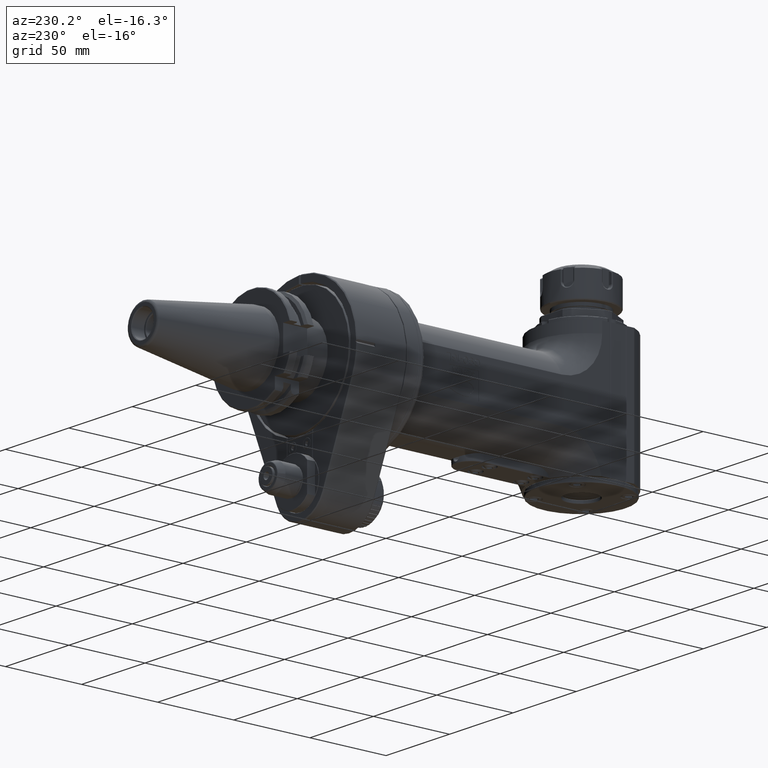
[diagram: clean part render]
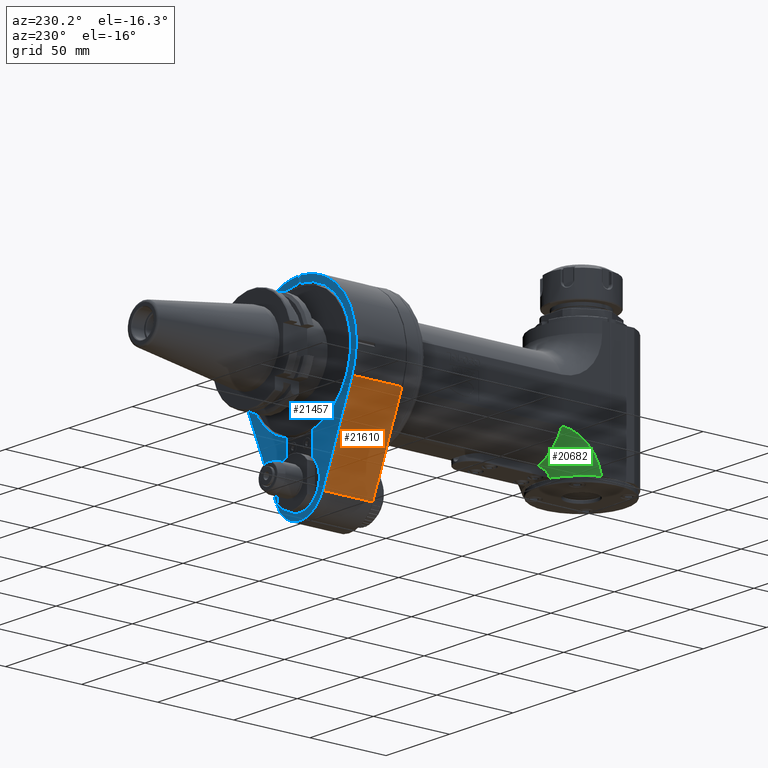
[diagram: same view with three faces highlighted in distinct colors, each labeled with its STEP entity id]
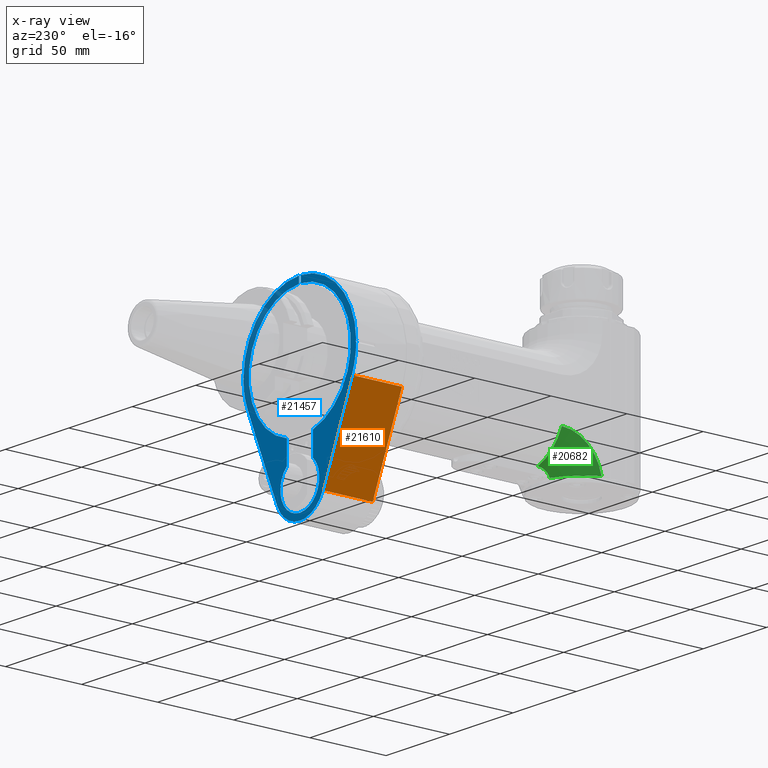
[diagram: x-ray of the same camera — body ghosted, the three highlighted faces saturated]
A machine part, auxiliary view with three faces highlighted in distinct colors.
The next image is the same camera in x-ray (body ghosted, the three faces saturated) — at least one of them is partly hidden behind the body in this view.
Their STEP definitions:

[orange] entity #21610 — the highlighted planar face has unit normal (-0.9231, 0, -0.3846).
#982=PLANE('',#23473);
#2399=FACE_OUTER_BOUND('',#3698,.T.);
#3698=EDGE_LOOP('',(#19304,#19305,#19306,#19307));
#6514=LINE('',#40719,#8576);
#6524=LINE('',#40741,#8586);
#6525=LINE('',#40743,#8587);
#6526=LINE('',#40744,#8588);
#8576=VECTOR('',#28660,10.);
#8586=VECTOR('',#28686,10.);
#8587=VECTOR('',#28689,31.99969563317);
#8588=VECTOR('',#28690,32.00018741808);
#10555=VERTEX_POINT('',#39226);
#10771=VERTEX_POINT('',#40714);
#10772=VERTEX_POINT('',#40718);
#10776=VERTEX_POINT('',#40737);
#13695=EDGE_CURVE('',#10772,#10771,#6514,.T.);
#13707=EDGE_CURVE('',#10555,#10776,#6524,.T.);
#13708=EDGE_CURVE('',#10776,#10772,#6525,.T.);
#13709=EDGE_CURVE('',#10771,#10555,#6526,.T.);
#19304=ORIENTED_EDGE('',*,*,#13707,.T.);
#19305=ORIENTED_EDGE('',*,*,#13708,.T.);
#19306=ORIENTED_EDGE('',*,*,#13695,.T.);
#19307=ORIENTED_EDGE('',*,*,#13709,.T.);
#21610=ADVANCED_FACE('',(#2399),#982,.T.);
#23473=AXIS2_PLACEMENT_3D('',#40742,#28687,#28688);
#28660=DIRECTION('',(-0.384615384615406,3.39139971075705E-14,0.923076923076914));
#28686=DIRECTION('',(0.384615384615406,3.39139971075705E-14,-0.923076923076914));
#28687=DIRECTION('center_axis',(-0.923076923076914,0.,-0.384615384615406));
#28688=DIRECTION('ref_axis',(-0.384615384615406,0.,0.923076923076914));
#28689=DIRECTION('',(-5.231420650501E-13,-1.,-2.184939694437E-13));
#28690=DIRECTION('',(5.357904936583E-13,1.,1.99061822447E-13));
#39226=CARTESIAN_POINT('',(-41.5383202524667,32.5003101427439,-17.3076334733757));
#40714=CARTESIAN_POINT('',(-41.5384616394059,0.500113797660992,-17.3076923845356));
#40718=CARTESIAN_POINT('',(-18.4615386000156,0.500150759076893,-72.6923076780329));
#40719=CARTESIAN_POINT('',(-24.2307692307706,0.500000000001736,-58.8461538461574));
#40737=CARTESIAN_POINT('',(-18.4615384204592,32.499849710546,-72.692307603216));
#40741=CARTESIAN_POINT('',(-24.2307692307709,32.4999999999983,-58.8461538461569));
#40742=CARTESIAN_POINT('Origin',(-18.46153846154,0.,-72.69230769231));
#40743=CARTESIAN_POINT('',(-18.46153848688,32.49985434569,-72.69230763089));
#40744=CARTESIAN_POINT('',(-41.53846152592,0.5001217498938,-17.30769233725));

[blue] entity #21457 — the highlighted planar face has unit normal (0, 1, 0).
#909=PLANE('',#23178);
#2246=FACE_OUTER_BOUND('',#3528,.T.);
#3528=EDGE_LOOP('',(#18530,#18531,#18532,#18533,#18534,#18535,#18536,#18537,
#18538,#18539,#18540,#18541,#18542,#18543,#18544,#18545,#18546,#18547));
#4540=CIRCLE('',#23176,44.49997422302);
#4542=CIRCLE('',#23179,44.50060196107);
#4543=CIRCLE('',#23180,44.49995139312);
#4544=CIRCLE('',#23181,40.19996696382);
#4545=CIRCLE('',#23182,15.34995496794);
#4546=CIRCLE('',#23183,40.19996600925);
#4547=CIRCLE('',#23184,44.5006095081);
#4548=CIRCLE('',#23185,19.49970659949);
#6329=LINE('',#39156,#8391);
#6335=LINE('',#39194,#8397);
#6336=LINE('',#39196,#8398);
#6337=LINE('',#39200,#8399);
#6338=LINE('',#39204,#8400);
#6339=LINE('',#39208,#8401);
#6340=LINE('',#39211,#8402);
#6341=LINE('',#39213,#8403);
#6342=LINE('',#39217,#8404);
#6343=LINE('',#39220,#8405);
#8391=VECTOR('',#27891,10.);
#8397=VECTOR('',#27911,10.);
#8398=VECTOR('',#27912,10.);
#8399=VECTOR('',#27915,10.);
#8400=VECTOR('',#27918,10.);
#8401=VECTOR('',#27921,10.);
#8402=VECTOR('',#27924,10.);
#8403=VECTOR('',#27925,10.);
#8404=VECTOR('',#27928,10.);
#8405=VECTOR('',#27931,10.);
#10526=VERTEX_POINT('',#39150);
#10528=VERTEX_POINT('',#39155);
#10537=VERTEX_POINT('',#39182);
#10539=VERTEX_POINT('',#39190);
#10540=VERTEX_POINT('',#39191);
#10541=VERTEX_POINT('',#39193);
#10542=VERTEX_POINT('',#39195);
#10543=VERTEX_POINT('',#39197);
#10544=VERTEX_POINT('',#39199);
#10545=VERTEX_POINT('',#39201);
#10546=VERTEX_POINT('',#39203);
#10547=VERTEX_POINT('',#39205);
#10548=VERTEX_POINT('',#39207);
#10549=VERTEX_POINT('',#39210);
#10550=VERTEX_POINT('',#39212);
#10551=VERTEX_POINT('',#39214);
#10552=VERTEX_POINT('',#39216);
#10553=VERTEX_POINT('',#39218);
#13305=EDGE_CURVE('',#10528,#10526,#6329,.T.);
#13316=EDGE_CURVE('',#10537,#10526,#4540,.T.);
#13319=EDGE_CURVE('',#10539,#10540,#4542,.T.);
#13320=EDGE_CURVE('',#10541,#10539,#6335,.T.);
#13321=EDGE_CURVE('',#10542,#10541,#6336,.T.);
#13322=EDGE_CURVE('',#10543,#10542,#4543,.T.);
#13323=EDGE_CURVE('',#10544,#10543,#6337,.T.);
#13324=EDGE_CURVE('',#10545,#10544,#4544,.T.);
#13325=EDGE_CURVE('',#10546,#10545,#6338,.T.);
#13326=EDGE_CURVE('',#10547,#10546,#4545,.T.);
#13327=EDGE_CURVE('',#10548,#10547,#6339,.T.);
#13328=EDGE_CURVE('',#10528,#10548,#4546,.T.);
#13329=EDGE_CURVE('',#10549,#10537,#6340,.T.);
#13330=EDGE_CURVE('',#10550,#10549,#6341,.T.);
#13331=EDGE_CURVE('',#10551,#10550,#4547,.T.);
#13332=EDGE_CURVE('',#10552,#10551,#6342,.T.);
#13333=EDGE_CURVE('',#10553,#10552,#4548,.T.);
#13334=EDGE_CURVE('',#10540,#10553,#6343,.T.);
#18530=ORIENTED_EDGE('',*,*,#13319,.F.);
#18531=ORIENTED_EDGE('',*,*,#13320,.F.);
#18532=ORIENTED_EDGE('',*,*,#13321,.F.);
#18533=ORIENTED_EDGE('',*,*,#13322,.F.);
#18534=ORIENTED_EDGE('',*,*,#13323,.F.);
#18535=ORIENTED_EDGE('',*,*,#13324,.F.);
#18536=ORIENTED_EDGE('',*,*,#13325,.F.);
#18537=ORIENTED_EDGE('',*,*,#13326,.F.);
#18538=ORIENTED_EDGE('',*,*,#13327,.F.);
#18539=ORIENTED_EDGE('',*,*,#13328,.F.);
#18540=ORIENTED_EDGE('',*,*,#13305,.T.);
#18541=ORIENTED_EDGE('',*,*,#13316,.F.);
#18542=ORIENTED_EDGE('',*,*,#13329,.F.);
#18543=ORIENTED_EDGE('',*,*,#13330,.F.);
#18544=ORIENTED_EDGE('',*,*,#13331,.F.);
#18545=ORIENTED_EDGE('',*,*,#13332,.F.);
#18546=ORIENTED_EDGE('',*,*,#13333,.F.);
#18547=ORIENTED_EDGE('',*,*,#13334,.F.);
#21457=ADVANCED_FACE('',(#2246),#909,.T.);
#23176=AXIS2_PLACEMENT_3D('',#39183,#27903,#27904);
#23178=AXIS2_PLACEMENT_3D('',#39189,#27907,#27908);
#23179=AXIS2_PLACEMENT_3D('',#39192,#27909,#27910);
#23180=AXIS2_PLACEMENT_3D('',#39198,#27913,#27914);
#23181=AXIS2_PLACEMENT_3D('',#39202,#27916,#27917);
#23182=AXIS2_PLACEMENT_3D('',#39206,#27919,#27920);
#23183=AXIS2_PLACEMENT_3D('',#39209,#27922,#27923);
#23184=AXIS2_PLACEMENT_3D('',#39215,#27926,#27927);
#23185=AXIS2_PLACEMENT_3D('',#39219,#27929,#27930);
#27891=DIRECTION('',(0.,0.,1.));
#27903=DIRECTION('center_axis',(0.,-1.,0.));
#27904=DIRECTION('ref_axis',(0.999937579972993,0.,0.0111730102368899));
#27907=DIRECTION('center_axis',(0.,1.,0.));
#27908=DIRECTION('ref_axis',(1.,0.,0.));
#27909=DIRECTION('center_axis',(0.,-1.,0.));
#27910=DIRECTION('ref_axis',(-0.999937458228398,0.,-0.01118390055975));
#27911=DIRECTION('',(-0.707106781186597,0.,-0.707106781186498));
#27912=DIRECTION('',(0.707106781186548,0.,-0.707106781186548));
#27913=DIRECTION('center_axis',(0.,-1.,0.));
#27914=DIRECTION('ref_axis',(-0.0168539476534495,0.,0.99985796213687));
#27915=DIRECTION('',(0.,0.,1.));
#27916=DIRECTION('center_axis',(0.,1.,0.));
#27917=DIRECTION('ref_axis',(-0.253731472853505,0.,-0.967274697117417));
#27918=DIRECTION('',(0.,0.,1.));
#27919=DIRECTION('center_axis',(0.,1.,0.));
#27920=DIRECTION('ref_axis',(-0.664496173825118,0.,-0.74729166660132));
#27921=DIRECTION('',(0.,0.,-1.));
#27922=DIRECTION('center_axis',(0.,1.,0.));
#27923=DIRECTION('ref_axis',(0.0186567299968895,0.,0.999825948065874));
#27924=DIRECTION('',(0.707106781186548,0.,0.707106781186548));
#27925=DIRECTION('',(-0.707106781186597,0.,0.707106781186498));
#27926=DIRECTION('center_axis',(0.,-1.,0.));
#27927=DIRECTION('ref_axis',(0.9230769226415,0.,-0.3846153856604));
#27928=DIRECTION('',(0.384615384615375,0.,0.923076923076927));
#27929=DIRECTION('center_axis',(0.,-1.,0.));
#27930=DIRECTION('ref_axis',(0.,0.,-1.));
#27931=DIRECTION('',(0.384615384615375,0.,-0.923076923076927));
#39150=CARTESIAN_POINT('',(0.749999999978455,32.9999999996272,44.4936535466589));
#39155=CARTESIAN_POINT('',(0.750000000029131,32.9999999995471,40.1929691246732));
#39156=CARTESIAN_POINT('',(0.75,33.,11.65449913669));
#39182=CARTESIAN_POINT('',(44.497196560421,32.9999999984871,0.497196562890159));
#39183=CARTESIAN_POINT('Origin',(-3.67261766546E-13,33.,6.679101816145E-13));
#39189=CARTESIAN_POINT('Origin',(0.,33.,0.));
#39190=CARTESIAN_POINT('',(-44.4978171876307,33.0000000911052,-0.497817038986331));
#39191=CARTESIAN_POINT('',(-41.0772125627142,32.9998540376262,-17.1155052666226));
#39192=CARTESIAN_POINT('Origin',(-4.760636229593E-13,33.,0.));
#39193=CARTESIAN_POINT('',(-43.9999999999993,33.0000000005136,3.22546367951519E-13));
#39194=CARTESIAN_POINT('',(-32.9999999999985,33.,11.));
#39195=CARTESIAN_POINT('',(-44.4971739948912,32.999999992489,0.497174007139183));
#39196=CARTESIAN_POINT('',(-33.5,33.,-10.5));
#39197=CARTESIAN_POINT('',(-0.749999999975591,32.9999999995714,44.4936307136342));
#39198=CARTESIAN_POINT('Origin',(1.076472254677E-12,32.99999999999,-1.803002091991E-13));
#39199=CARTESIAN_POINT('',(-0.7499999994176,33.0000000002497,40.192970081119));
#39200=CARTESIAN_POINT('',(-0.75,33.,23.50149913669));
#39201=CARTESIAN_POINT('',(-10.2000000001101,33.0000000001551,-38.8844100370403));
#39202=CARTESIAN_POINT('Origin',(6.563638621584E-13,33.,-1.428190888878E-12));
#39203=CARTESIAN_POINT('',(-10.1999999996973,32.9999999999989,-53.5291187115762));
#39204=CARTESIAN_POINT('',(-10.2,33.,-23.087259558755));
#39205=CARTESIAN_POINT('',(10.1999999995047,33.0000000000003,-53.5291187111416));
#39206=CARTESIAN_POINT('Origin',(2.531308596145E-13,33.,-65.));
#39207=CARTESIAN_POINT('',(10.1999999993647,32.9999999996909,-38.8844090493058));
#39208=CARTESIAN_POINT('',(10.2,33.,-23.087259558755));
#39209=CARTESIAN_POINT('Origin',(3.046452079571E-13,33.,2.48689967516E-13));
#39210=CARTESIAN_POINT('',(43.9999999999993,33.0000000005209,3.5344623017531E-13));
#39211=CARTESIAN_POINT('',(33.5,33.,-10.5));
#39212=CARTESIAN_POINT('',(44.497824649052,33.0000000922471,-0.497824498542216));
#39213=CARTESIAN_POINT('',(32.9999999999985,33.,11.));
#39214=CARTESIAN_POINT('',(41.0772051091035,32.999999505033,-17.1155021788918));
#39215=CARTESIAN_POINT('Origin',(9.166001391305E-13,33.,1.321165499304E-13));
#39216=CARTESIAN_POINT('',(18.0002498721373,33.0000111993003,-72.4990188531515));
#39217=CARTESIAN_POINT('',(35.3076923076922,33.,-30.9615384615402));
#39218=CARTESIAN_POINT('',(-18.000237297124,32.999999043758,-72.4990530568679));
#39219=CARTESIAN_POINT('Origin',(-6.217247937901E-14,33.,-65.));
#39220=CARTESIAN_POINT('',(-35.3076923076922,33.,-30.9615384615402));

[green] entity #20682 — the highlighted toroidal blend (fillet) surface has major radius 40 mm and minor (blend) radius 32 mm.
#382=TOROIDAL_SURFACE('',#21936,40.,32.);
#1241=B_SPLINE_CURVE_WITH_KNOTS('',3,(#30259,#30260,#30261,#30262,#30263,
#30264,#30265,#30266,#30267,#30268,#30269,#30270,#30271,#30272,#30273,#30274,
#30275,#30276,#30277,#30278,#30279,#30280,#30281,#30282,#30283,#30284,#30285,
#30286,#30287,#30288,#30289,#30290,#30291,#30292),.UNSPECIFIED.,.F.,.F.,
(4,3,3,3,3,3,3,3,3,3,3,4),(0.,0.09090909090909,0.1818181818182,0.2727272727273,
0.3636363636364,0.4545454545455,0.5454545454545,0.6363636363636,0.7272727272727,
0.8181818181818,0.9090909090909,1.),.UNSPECIFIED.);
#1242=B_SPLINE_CURVE_WITH_KNOTS('',3,(#30296,#30297,#30298,#30299,#30300,
#30301,#30302,#30303,#30304,#30305,#30306,#30307,#30308,#30309,#30310,#30311,
#30312,#30313,#30314,#30315,#30316,#30317,#30318,#30319,#30320,#30321,#30322,
#30323,#30324,#30325,#30326,#30327,#30328,#30329,#30330,#30331,#30332,#30333,
#30334,#30335,#30336,#30337,#30338,#30339,#30340,#30341,#30342,#30343,#30344,
#30345,#30346,#30347,#30348,#30349,#30350,#30351,#30352,#30353,#30354,#30355,
#30356,#30357,#30358,#30359,#30360,#30361,#30362,#30363,#30364,#30365,#30366,
#30367,#30368,#30369,#30370,#30371,#30372,#30373,#30374,#30375,#30376,#30377,
#30378,#30379,#30380,#30381,#30382,#30383,#30384,#30385,#30386,#30387,#30388,
#30389),.UNSPECIFIED.,.F.,.F.,(4,3,3,3,3,3,3,3,3,3,3,3,3,3,3,3,3,3,3,3,
3,3,3,3,3,3,3,3,3,3,3,4),(0.,0.03703703703704,0.0696907509670549,0.07407407407407,
0.1111111111111,0.143824671397829,0.1481481481481,0.1851851851852,0.218073008619164,
0.2222222222222,0.2592592592593,0.294095379749909,0.2962962962963,0.3333333333333,
0.3703703703704,0.4074074074074,0.4444444444444,0.4814814814815,0.5185185185185,
0.5555555555556,0.5925925925926,0.6296296296296,0.6666666666667,0.7037037037037,
0.7407407407407,0.7777777777778,0.8148148148148,0.8518518518519,0.8888888888889,
0.9259259259259,0.962962962963,1.),.UNSPECIFIED.);
#1471=FACE_OUTER_BOUND('',#2664,.T.);
#2664=EDGE_LOOP('',(#14185,#14186,#14187,#14188,#14189,#14190));
#4061=CIRCLE('',#21928,32.);
#4065=CIRCLE('',#21935,9.602631692859);
#4066=CIRCLE('',#21937,9.60216664436333);
#4067=CIRCLE('',#21938,26.47225074153);
#8900=VERTEX_POINT('',#29864);
#8901=VERTEX_POINT('',#29866);
#8914=VERTEX_POINT('',#30254);
#8915=VERTEX_POINT('',#30258);
#8916=VERTEX_POINT('',#30293);
#8917=VERTEX_POINT('',#30295);
#10984=EDGE_CURVE('',#8900,#8901,#4061,.T.);
#11004=EDGE_CURVE('',#8900,#8914,#4065,.T.);
#11005=EDGE_CURVE('',#8915,#8914,#1241,.T.);
#11006=EDGE_CURVE('',#8915,#8916,#4066,.T.);
#11007=EDGE_CURVE('',#8916,#8917,#1242,.T.);
#11008=EDGE_CURVE('',#8901,#8917,#4067,.T.);
#14185=ORIENTED_EDGE('',*,*,#11004,.T.);
#14186=ORIENTED_EDGE('',*,*,#11005,.F.);
#14187=ORIENTED_EDGE('',*,*,#11006,.T.);
#14188=ORIENTED_EDGE('',*,*,#11007,.T.);
#14189=ORIENTED_EDGE('',*,*,#11008,.F.);
#14190=ORIENTED_EDGE('',*,*,#10984,.F.);
#20682=ADVANCED_FACE('',(#1471),#382,.T.);
#21928=AXIS2_PLACEMENT_3D('',#29867,#23844,#23845);
#21935=AXIS2_PLACEMENT_3D('',#30256,#23867,#23868);
#21936=AXIS2_PLACEMENT_3D('',#30257,#23869,#23870);
#21937=AXIS2_PLACEMENT_3D('',#30294,#23871,#23872);
#21938=AXIS2_PLACEMENT_3D('',#30390,#23873,#23874);
#23844=DIRECTION('center_axis',(0.,1.,0.));
#23845=DIRECTION('ref_axis',(-0.31249999999999,0.,-0.94991775959817));
#23867=DIRECTION('center_axis',(1.,0.,0.));
#23868=DIRECTION('ref_axis',(0.,-1.456213409722E-12,1.));
#23869=DIRECTION('center_axis',(1.,0.,0.));
#23870=DIRECTION('ref_axis',(0.,1.,0.));
#23871=DIRECTION('center_axis',(0.990938888785348,0.0325249992255246,0.130315935780086));
#23872=DIRECTION('ref_axis',(-0.035349810447624,-0.872875061118463,0.486661605819441));
#23873=DIRECTION('center_axis',(1.,0.,0.));
#23874=DIRECTION('ref_axis',(0.,0.,1.));
#29864=CARTESIAN_POINT('',(-10.,-140.,-30.39736830714));
#29866=CARTESIAN_POINT('',(-29.,-140.,-13.52774925847));
#29867=CARTESIAN_POINT('Origin',(0.,-140.,0.));
#30254=CARTESIAN_POINT('',(-10.,-145.5,-32.12849852768));
#30256=CARTESIAN_POINT('Origin',(-10.,-140.,-40.));
#30257=CARTESIAN_POINT('Origin',(0.,-140.,-40.));
#30258=CARTESIAN_POINT('',(-9.694004100772,-147.9548491795,-34.79999287965));
#30259=CARTESIAN_POINT('Ctrl Pts',(-9.69400410076518,-147.954849179518,
-34.7999928796383));
#30260=CARTESIAN_POINT('Ctrl Pts',(-9.70996534679378,-147.891819488824,
-34.6942987599339));
#30261=CARTESIAN_POINT('Ctrl Pts',(-9.72565364699584,-147.827286422319,
-34.5907953602648));
#30262=CARTESIAN_POINT('Ctrl Pts',(-9.74097548796417,-147.761282057321,
-34.4893756747086));
#30263=CARTESIAN_POINT('Ctrl Pts',(-9.7562973289325,-147.695277692323,-34.3879559891524));
#30264=CARTESIAN_POINT('Ctrl Pts',(-9.77125375627257,-147.627799338745,
-34.2886218889242));
#30265=CARTESIAN_POINT('Ctrl Pts',(-9.78572366109255,-147.559031915456,
-34.1915020162433));
#30266=CARTESIAN_POINT('Ctrl Pts',(-9.80019356591256,-147.490264492167,
-34.0943821435625));
#30267=CARTESIAN_POINT('Ctrl Pts',(-9.81417651668348,-147.420209063602,
-33.9994756772605));
#30268=CARTESIAN_POINT('Ctrl Pts',(-9.82757525910439,-147.348990137008,
-33.906804309369));
#30269=CARTESIAN_POINT('Ctrl Pts',(-9.84097400152526,-147.277771210414,
-33.8141329414775));
#30270=CARTESIAN_POINT('Ctrl Pts',(-9.85378921680292,-147.205387157073,
-33.7236980171153));
#30271=CARTESIAN_POINT('Ctrl Pts',(-9.86591462003787,-147.132093352163,
-33.6356601673401));
#30272=CARTESIAN_POINT('Ctrl Pts',(-9.87804002327281,-147.058799547252,
-33.5476223175649));
#30273=CARTESIAN_POINT('Ctrl Pts',(-9.88947479749658,-146.9845978552,-33.461979848575));
#30274=CARTESIAN_POINT('Ctrl Pts',(-9.90015215131559,-146.909605398981,
-33.3787012779385));
#30275=CARTESIAN_POINT('Ctrl Pts',(-9.91082950513456,-146.834612942762,
-33.2954227073021));
#30276=CARTESIAN_POINT('Ctrl Pts',(-9.92074955208282,-146.758829491981,
-33.2145082954404));
#30277=CARTESIAN_POINT('Ctrl Pts',(-9.92985161708792,-146.682390317313,
-33.1359456085714));
#30278=CARTESIAN_POINT('Ctrl Pts',(-9.93895368209303,-146.605951142646,
-33.0573829217023));
#30279=CARTESIAN_POINT('Ctrl Pts',(-9.94723773720541,-146.528856299351,
-32.9811718945701));
#30280=CARTESIAN_POINT('Ctrl Pts',(-9.95465493255007,-146.451233501234,
-32.907287582159));
#30281=CARTESIAN_POINT('Ctrl Pts',(-9.96207212789471,-146.373610703117,
-32.833403269748));
#30282=CARTESIAN_POINT('Ctrl Pts',(-9.96862245953739,-146.29545994527,-32.7618456532942));
#30283=CARTESIAN_POINT('Ctrl Pts',(-9.97426918451069,-146.216906015461,
-32.6925825931096));
#30284=CARTESIAN_POINT('Ctrl Pts',(-9.97991590948398,-146.138352085652,
-32.6233195329249));
#30285=CARTESIAN_POINT('Ctrl Pts',(-9.98465850773186,-146.059396027851,
-32.5563498338154));
#30286=CARTESIAN_POINT('Ctrl Pts',(-9.98847200148971,-145.980028202721,
-32.4915364866729));
#30287=CARTESIAN_POINT('Ctrl Pts',(-9.99228549524755,-145.900660377591,
-32.4267231395303));
#30288=CARTESIAN_POINT('Ctrl Pts',(-9.99517059872072,-145.820879433777,
-32.3640678471891));
#30289=CARTESIAN_POINT('Ctrl Pts',(-9.99709933741569,-145.740841935368,
-32.3035757279912));
#30290=CARTESIAN_POINT('Ctrl Pts',(-9.99902807611065,-145.66080443696,-32.2430836087932));
#30291=CARTESIAN_POINT('Ctrl Pts',(-10.0000000000031,-145.580511180395,
-32.1847535501478));
#30292=CARTESIAN_POINT('Ctrl Pts',(-10.0000000000006,-145.499999999999,
-32.1284985276816));
#30293=CARTESIAN_POINT('',(-9.663895114371,-148.0708230625,-35.));
#30294=CARTESIAN_POINT('Origin',(-9.32446034361796,-139.6893312659,-39.6730058385112));
#30295=CARTESIAN_POINT('',(-29.,-165.9957700275,-35.));
#30296=CARTESIAN_POINT('Ctrl Pts',(-9.6638951143827,-148.070823062469,-35.0000000000194));
#30297=CARTESIAN_POINT('Ctrl Pts',(-9.96161232570413,-148.181768404471,
-35.0000000000176));
#30298=CARTESIAN_POINT('Ctrl Pts',(-10.2599325456022,-148.297939368347,
-34.9999986011151));
#30299=CARTESIAN_POINT('Ctrl Pts',(-10.5590742157694,-148.419553190819,
-35.0000000000138));
#30300=CARTESIAN_POINT('Ctrl Pts',(-10.8228125518685,-148.526774050979,
-35.0000012333532));
#30301=CARTESIAN_POINT('Ctrl Pts',(-11.0871872770857,-148.638230451207,
-35.0000007545856));
#30302=CARTESIAN_POINT('Ctrl Pts',(-11.3516370058649,-148.753779796606,
-35.0000002676));
#30303=CARTESIAN_POINT('Ctrl Pts',(-11.3871358348584,-148.769290746349,
-35.0000002022287));
#30304=CARTESIAN_POINT('Ctrl Pts',(-11.4226360302559,-148.7848753754,-35.0000001181698));
#30305=CARTESIAN_POINT('Ctrl Pts',(-11.4581362486766,-148.800533269984,
-34.9999999999998));
#30306=CARTESIAN_POINT('Ctrl Pts',(-11.7580965464615,-148.932835180534,
-34.9999990015187));
#30307=CARTESIAN_POINT('Ctrl Pts',(-12.0580586022848,-149.070371278198,
-34.9999992962188));
#30308=CARTESIAN_POINT('Ctrl Pts',(-12.357650189273,-149.21307715773,-35.0000000000108));
#30309=CARTESIAN_POINT('Ctrl Pts',(-12.6222692902161,-149.33912442735,-35.0000006216465));
#30310=CARTESIAN_POINT('Ctrl Pts',(-12.8865987646783,-149.469205723606,
-34.9999999738201));
#30311=CARTESIAN_POINT('Ctrl Pts',(-13.1501862997571,-149.603161537828,
-35.0000000671382));
#30312=CARTESIAN_POINT('Ctrl Pts',(-13.185022452398,-149.620865353715,-35.0000000794712));
#30313=CARTESIAN_POINT('Ctrl Pts',(-13.2198456623608,-149.638636781919,
-35.0000000674805));
#30314=CARTESIAN_POINT('Ctrl Pts',(-13.2546549011537,-149.656475396764,
-35.0000000000096));
#30315=CARTESIAN_POINT('Ctrl Pts',(-13.5528480315607,-149.809289781315,
-34.9999994220206));
#30316=CARTESIAN_POINT('Ctrl Pts',(-13.8500154550497,-149.967038341233,
-34.999999538975));
#30317=CARTESIAN_POINT('Ctrl Pts',(-14.145800820945,-150.129599416477,-34.9999999999949));
#30318=CARTESIAN_POINT('Ctrl Pts',(-14.4084497169182,-150.273948974854,
-35.0000004093673));
#30319=CARTESIAN_POINT('Ctrl Pts',(-14.6700084100579,-150.422093677867,
-34.9999997020248));
#30320=CARTESIAN_POINT('Ctrl Pts',(-14.9300899914387,-150.573851473407,
-34.9999999957389));
#30321=CARTESIAN_POINT('Ctrl Pts',(-14.9629025622532,-150.592997632802,
-35.0000000327947));
#30322=CARTESIAN_POINT('Ctrl Pts',(-14.995691639972,-150.612201250244,-35.0000000449454));
#30323=CARTESIAN_POINT('Ctrl Pts',(-15.0284564636781,-150.631461915566,
-34.9999999999924));
#30324=CARTESIAN_POINT('Ctrl Pts',(-15.3209244118771,-150.80338798232,-34.9999995987288));
#30325=CARTESIAN_POINT('Ctrl Pts',(-15.6114591002818,-150.979862873261,
-34.9999997341749));
#30326=CARTESIAN_POINT('Ctrl Pts',(-15.8997619782911,-151.160736353845,
-35.0000000000026));
#30327=CARTESIAN_POINT('Ctrl Pts',(-16.170932530786,-151.33086147365,-35.0000002500336));
#30328=CARTESIAN_POINT('Ctrl Pts',(-16.4401282275583,-151.504878472105,
-34.9999998296767));
#30329=CARTESIAN_POINT('Ctrl Pts',(-16.707017617299,-151.682588816389,-35.0000000003365));
#30330=CARTESIAN_POINT('Ctrl Pts',(-16.723879462581,-151.693816405217,-35.0000000111187));
#30331=CARTESIAN_POINT('Ctrl Pts',(-16.7407321071176,-151.705058724753,
-35.000000012512));
#30332=CARTESIAN_POINT('Ctrl Pts',(-16.7575754694249,-151.716315720235,
-35.0000000000064));
#30333=CARTESIAN_POINT('Ctrl Pts',(-17.0410156728389,-151.905748508713,
-34.9999997895614));
#30334=CARTESIAN_POINT('Ctrl Pts',(-17.3218264731174,-152.099339810169,
-34.9999999182846));
#30335=CARTESIAN_POINT('Ctrl Pts',(-17.5997710910715,-152.296929797263,
-35.0000000000013));
#30336=CARTESIAN_POINT('Ctrl Pts',(-17.8777157090262,-152.494519784357,
-35.0000000817179));
#30337=CARTESIAN_POINT('Ctrl Pts',(-18.1527939266394,-152.696108736218,
-35.0000000122655));
#30338=CARTESIAN_POINT('Ctrl Pts',(-18.4247547595591,-152.90150772534,-35.0000000000043));
#30339=CARTESIAN_POINT('Ctrl Pts',(-18.696715592478,-153.10690671446,-34.999999987743));
#30340=CARTESIAN_POINT('Ctrl Pts',(-18.9655592110625,-153.316115543743,
-35.0000001003493));
#30341=CARTESIAN_POINT('Ctrl Pts',(-19.2310759120425,-153.528955385901,
-34.9999999999996));
#30342=CARTESIAN_POINT('Ctrl Pts',(-19.4965926130225,-153.741795228059,
-34.9999998996499));
#30343=CARTESIAN_POINT('Ctrl Pts',(-19.7587829078983,-153.958265415867,
-34.9999998411297));
#30344=CARTESIAN_POINT('Ctrl Pts',(-20.0175243343799,-154.178244715033,
-35.0000000000058));
#30345=CARTESIAN_POINT('Ctrl Pts',(-20.2762657608622,-154.3982240142,-35.0000001588819));
#30346=CARTESIAN_POINT('Ctrl Pts',(-20.5315576145522,-154.621713278391,
-35.0000002279272));
#30347=CARTESIAN_POINT('Ctrl Pts',(-20.7831964489916,-154.848507038816,
-35.000000000006));
#30348=CARTESIAN_POINT('Ctrl Pts',(-21.0348352834303,-155.07530079924,-34.9999997720848));
#30349=CARTESIAN_POINT('Ctrl Pts',(-21.282822417297,-155.305397572092,-34.9999997512371));
#30350=CARTESIAN_POINT('Ctrl Pts',(-21.5271258885499,-155.538738000056,
-34.9999999999979));
#30351=CARTESIAN_POINT('Ctrl Pts',(-21.7714293598035,-155.772078428021,
-35.0000002487587));
#30352=CARTESIAN_POINT('Ctrl Pts',(-22.0120476785981,-156.008664083102,
-35.0000002595653));
#30353=CARTESIAN_POINT('Ctrl Pts',(-22.2487864928403,-156.248270153054,
-34.9999999999938));
#30354=CARTESIAN_POINT('Ctrl Pts',(-22.4855253070819,-156.487876223005,
-34.9999997404223));
#30355=CARTESIAN_POINT('Ctrl Pts',(-22.7183864590163,-156.730500884672,
-34.9999997709022));
#30356=CARTESIAN_POINT('Ctrl Pts',(-22.9473793824456,-156.97611832375,-34.9999999999951));
#30357=CARTESIAN_POINT('Ctrl Pts',(-23.1763723058749,-157.221735762828,
-35.0000002290881));
#30358=CARTESIAN_POINT('Ctrl Pts',(-23.4014952499018,-157.47034760285,-35.0000001817589));
#30359=CARTESIAN_POINT('Ctrl Pts',(-23.6225875090083,-157.721740112302,
-34.9999999999993));
#30360=CARTESIAN_POINT('Ctrl Pts',(-23.8436797681155,-157.973132621755,
-34.9999998182398));
#30361=CARTESIAN_POINT('Ctrl Pts',(-24.0607429567922,-158.227304400642,
-34.9999998920496));
#30362=CARTESIAN_POINT('Ctrl Pts',(-24.2737728627732,-158.484211196403,
-34.9999999999995));
#30363=CARTESIAN_POINT('Ctrl Pts',(-24.4868027687536,-158.741117992162,
-35.0000001079493));
#30364=CARTESIAN_POINT('Ctrl Pts',(-24.6957983390673,-159.000760647807,
-35.0000000283081));
#30365=CARTESIAN_POINT('Ctrl Pts',(-24.9006657986168,-159.262986055302,
-34.9999999999994));
#30366=CARTESIAN_POINT('Ctrl Pts',(-25.1055332581664,-159.525211462798,
-34.9999999716907));
#30367=CARTESIAN_POINT('Ctrl Pts',(-25.3062729523035,-159.790019387708,
-35.0000000491738));
#30368=CARTESIAN_POINT('Ctrl Pts',(-25.502824110083,-160.057288367945,-35.0000000000009));
#30369=CARTESIAN_POINT('Ctrl Pts',(-25.699375267863,-160.324557348184,-34.9999999508281));
#30370=CARTESIAN_POINT('Ctrl Pts',(-25.8917384603271,-160.594286929192,
-34.9999998937229));
#30371=CARTESIAN_POINT('Ctrl Pts',(-26.0798988084009,-160.866419048181,
-35.0000000000006));
#30372=CARTESIAN_POINT('Ctrl Pts',(-26.2680591564742,-161.13855116717,-35.0000001062784));
#30373=CARTESIAN_POINT('Ctrl Pts',(-26.4520152939051,-161.413086796394,
-35.0000001393755));
#30374=CARTESIAN_POINT('Ctrl Pts',(-26.6316572132662,-161.68982100164,-34.9999999999982));
#30375=CARTESIAN_POINT('Ctrl Pts',(-26.8112991326277,-161.966555206888,
-34.999999860621));
#30376=CARTESIAN_POINT('Ctrl Pts',(-26.9866288278691,-162.245486676498,
-34.9999998527822));
#30377=CARTESIAN_POINT('Ctrl Pts',(-27.1576732680025,-162.52661965888,-35.000000000001));
#30378=CARTESIAN_POINT('Ctrl Pts',(-27.3287177081354,-162.807752641261,
-35.0000001472197));
#30379=CARTESIAN_POINT('Ctrl Pts',(-27.4954745987981,-163.09108853905,-35.0000001381345));
#30380=CARTESIAN_POINT('Ctrl Pts',(-27.6578281461377,-163.376391574448,
-35.0000000000005));
#30381=CARTESIAN_POINT('Ctrl Pts',(-27.8201816934773,-163.661694609845,
-34.9999998618665));
#30382=CARTESIAN_POINT('Ctrl Pts',(-27.9781342380193,-163.948963451627,
-34.999999878547));
#30383=CARTESIAN_POINT('Ctrl Pts',(-28.1317108778834,-164.238204118716,
-35.));
#30384=CARTESIAN_POINT('Ctrl Pts',(-28.2852875177479,-164.527444785805,
-35.0000001214531));
#30385=CARTESIAN_POINT('Ctrl Pts',(-28.4344859619311,-164.818658488726,
-35.0000000992983));
#30386=CARTESIAN_POINT('Ctrl Pts',(-28.5792076824482,-165.111613750519,
-34.9999999999996));
#30387=CARTESIAN_POINT('Ctrl Pts',(-28.7239294029649,-165.404569012312,
-34.999999900701));
#30388=CARTESIAN_POINT('Ctrl Pts',(-28.8641773290643,-165.699264426893,
-35.0000000000013));
#30389=CARTESIAN_POINT('Ctrl Pts',(-29.0000000000012,-165.995770027499,
-35.0000000000001));
#30390=CARTESIAN_POINT('Origin',(-29.,-140.,-40.));